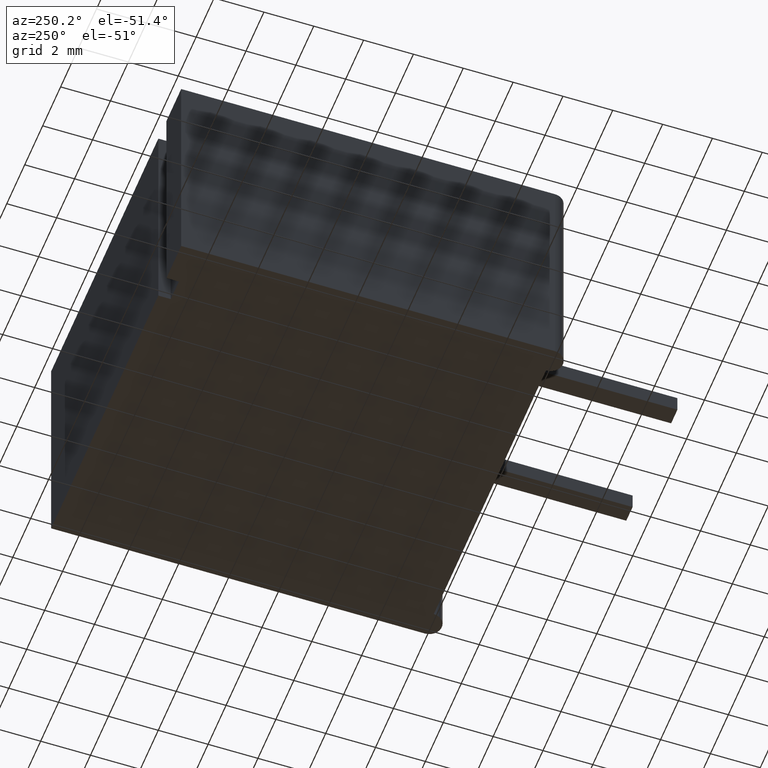
[diagram: clean part render]
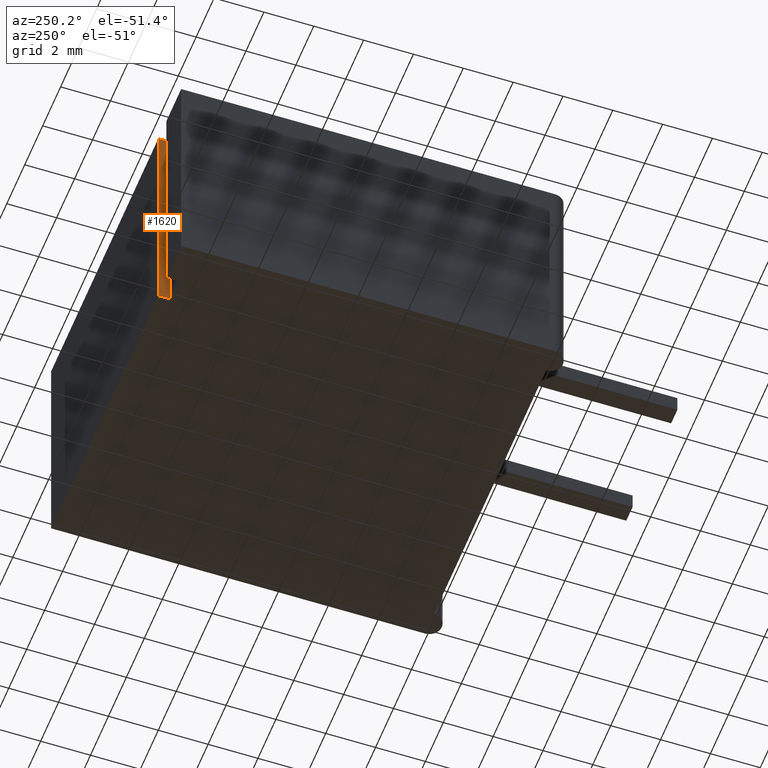
[diagram: same view with one face highlighted and labeled with its STEP entity id]
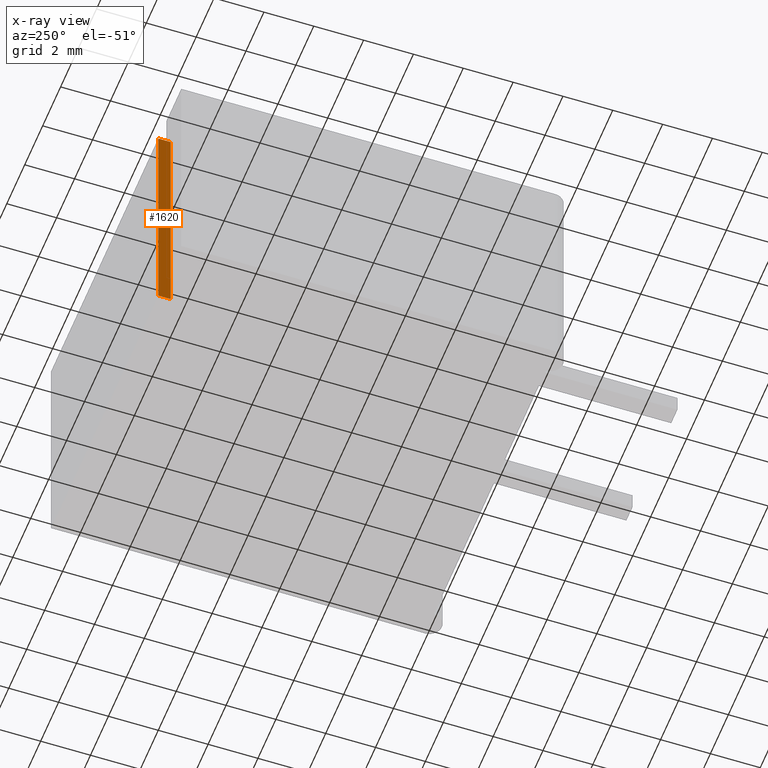
[diagram: x-ray of the same camera — body ghosted, the highlighted face saturated]
A machine part, auxiliary view. The second image highlights one B-rep face of the part: STEP entity #1620.
The next image is the same camera in x-ray: the body ghosted, the highlighted face saturated — about 0% of this face is hidden behind the body in this view.
In plain terms, the highlighted planar face has unit normal (1, -0, 0).
Its self-contained STEP definition (entity closure, byte-faithful):
#138 = CARTESIAN_POINT ( 'NONE',  ( 2.547635000000000500, 14.49999999999999800, 0.0000000000000000000 ) ) ;
#259 = EDGE_CURVE ( 'NONE', #282, #1751, #1902, .T. ) ;
#282 = VERTEX_POINT ( 'NONE', #1718 ) ;
#315 = CARTESIAN_POINT ( 'NONE',  ( 2.547635000000000500, 15.00000000000000000, 0.0000000000000000000 ) ) ;
#357 = VECTOR ( 'NONE', #1092, 1000.000000000000000 ) ;
#365 = DIRECTION ( 'NONE',  ( -0.0000000000000000000, -0.0000000000000000000, 1.000000000000000000 ) ) ;
#448 = CARTESIAN_POINT ( 'NONE',  ( 2.547634999999987700, -2.209721121360073600E-015, 0.0000000000000000000 ) ) ;
#487 = DIRECTION ( 'NONE',  ( 8.673617379884026600E-016, 1.000000000000000000, 0.0000000000000000000 ) ) ;
#550 = CARTESIAN_POINT ( 'NONE',  ( 2.547635000000000500, 15.00000000000000000, 0.0000000000000000000 ) ) ;
#567 = AXIS2_PLACEMENT_3D ( 'NONE', #448, #1933, #662 ) ;
#617 = FACE_OUTER_BOUND ( 'NONE', #2384, .T. ) ;
#662 = DIRECTION ( 'NONE',  ( 8.673617379884026600E-016, 1.000000000000000000, 0.0000000000000000000 ) ) ;
#913 = VECTOR ( 'NONE', #487, 1000.000000000000000 ) ;
#1087 = VECTOR ( 'NONE', #365, 1000.000000000000000 ) ;
#1092 = DIRECTION ( 'NONE',  ( 8.673617379884026600E-016, 1.000000000000000000, 0.0000000000000000000 ) ) ;
#1262 = ORIENTED_EDGE ( 'NONE', *, *, #1701, .T. ) ;
#1364 = LINE ( 'NONE', #550, #1087 ) ;
#1404 = CARTESIAN_POINT ( 'NONE',  ( 2.547635000000000500, 14.49999999999999800, 9.500000000000000000 ) ) ;
#1620 = ADVANCED_FACE ( 'NONE', ( #617 ), #1711, .F. ) ;
#1626 = ORIENTED_EDGE ( 'NONE', *, *, #259, .F. ) ;
#1701 = EDGE_CURVE ( 'NONE', #2590, #2640, #2280, .T. ) ;
#1711 = PLANE ( 'NONE',  #567 ) ;
#1718 = CARTESIAN_POINT ( 'NONE',  ( 2.547635000000000500, 14.49999999999999800, 0.0000000000000000000 ) ) ;
#1726 = CARTESIAN_POINT ( 'NONE',  ( 2.547634999999987700, -2.209721121360073600E-015, 0.0000000000000000000 ) ) ;
#1751 = VERTEX_POINT ( 'NONE', #315 ) ;
#1786 = LINE ( 'NONE', #138, #2765 ) ;
#1902 = LINE ( 'NONE', #1726, #357 ) ;
#1933 = DIRECTION ( 'NONE',  ( 1.000000000000000000, -8.673617379884026600E-016, 0.0000000000000000000 ) ) ;
#1946 = CARTESIAN_POINT ( 'NONE',  ( 2.547634999999987700, -2.209721121360073600E-015, 9.500000000000000000 ) ) ;
#2010 = EDGE_CURVE ( 'NONE', #282, #2590, #1786, .T. ) ;
#2280 = LINE ( 'NONE', #1946, #913 ) ;
#2384 = EDGE_LOOP ( 'NONE', ( #1262, #2641, #1626, #2585 ) ) ;
#2582 = EDGE_CURVE ( 'NONE', #1751, #2640, #1364, .T. ) ;
#2585 = ORIENTED_EDGE ( 'NONE', *, *, #2010, .T. ) ;
#2590 = VERTEX_POINT ( 'NONE', #1404 ) ;
#2640 = VERTEX_POINT ( 'NONE', #2696 ) ;
#2641 = ORIENTED_EDGE ( 'NONE', *, *, #2582, .F. ) ;
#2696 = CARTESIAN_POINT ( 'NONE',  ( 2.547635000000000500, 15.00000000000000000, 9.500000000000000000 ) ) ;
#2732 = DIRECTION ( 'NONE',  ( -0.0000000000000000000, -0.0000000000000000000, 1.000000000000000000 ) ) ;
#2765 = VECTOR ( 'NONE', #2732, 1000.000000000000000 ) ;